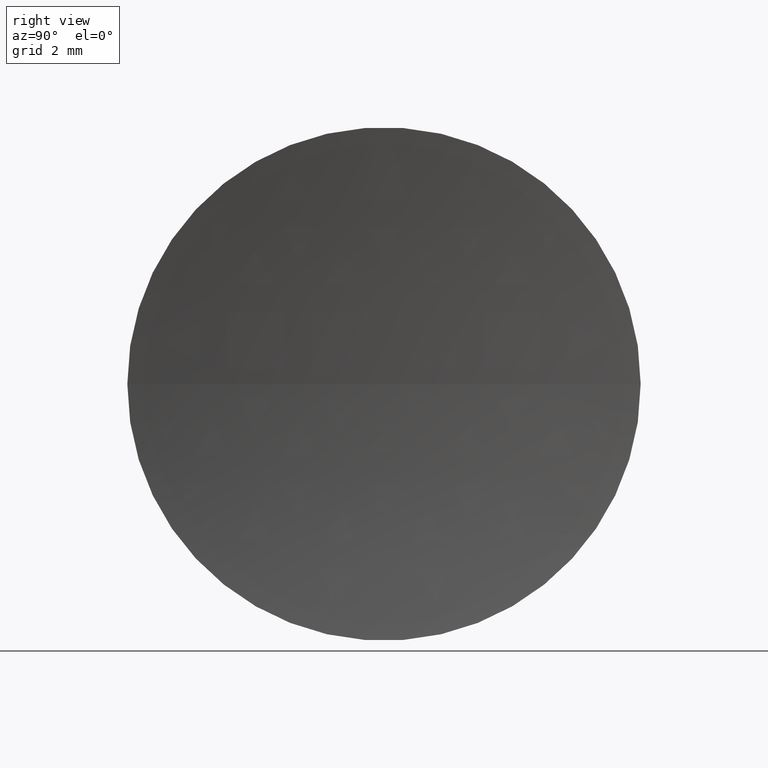
[diagram: clean part render]
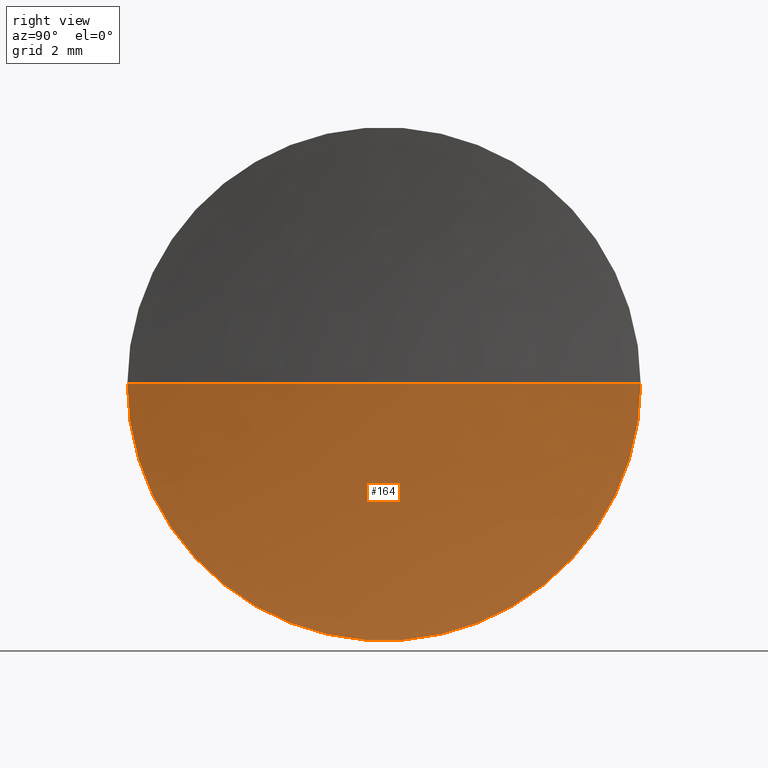
[diagram: same view with one face highlighted and labeled with its STEP entity id]
A machine part, right view. The second image highlights one B-rep face of the part: STEP entity #164.
In plain terms, the highlighted spherical surface has radius 32.5 mm.
Its self-contained STEP definition (entity closure, byte-faithful):
#7 = DIRECTION ( 'NONE',  ( 2.135044278125300100E-016, 1.000000000000000000, 0.0000000000000000000 ) ) ;
#8 = EDGE_CURVE ( 'NONE', #35, #101, #81, .T. ) ;
#10 = EDGE_CURVE ( 'NONE', #36, #101, #20, .T. ) ;
#20 = CIRCLE ( 'NONE', #32, 32.50000000000001400 ) ;
#26 = DIRECTION ( 'NONE',  ( 0.0000000000000000000, -1.000000000000000000, 0.0000000000000000000 ) ) ;
#32 = AXIS2_PLACEMENT_3D ( 'NONE', #44, #71, #157 ) ;
#33 = ORIENTED_EDGE ( 'NONE', *, *, #8, .T. ) ;
#35 = VERTEX_POINT ( 'NONE', #43 ) ;
#36 = VERTEX_POINT ( 'NONE', #143 ) ;
#39 = EDGE_CURVE ( 'NONE', #35, #36, #117, .T. ) ;
#43 = CARTESIAN_POINT ( 'NONE',  ( 24.31115060695783800, 18.03112609140307800, 0.0000000000000000000 ) ) ;
#44 = CARTESIAN_POINT ( 'NONE',  ( 56.42423205362066300, 13.03112609140303100, 0.0000000000000000000 ) ) ;
#54 = CARTESIAN_POINT ( 'NONE',  ( 56.42423205362066300, 13.03112609140303100, 0.0000000000000000000 ) ) ;
#61 = DIRECTION ( 'NONE',  ( 1.000000000000000000, 0.0000000000000000000, 0.0000000000000000000 ) ) ;
#62 = ORIENTED_EDGE ( 'NONE', *, *, #39, .F. ) ;
#63 = AXIS2_PLACEMENT_3D ( 'NONE', #142, #145, #61 ) ;
#66 = AXIS2_PLACEMENT_3D ( 'NONE', #107, #122, #26 ) ;
#71 = DIRECTION ( 'NONE',  ( 3.868869157118576300E-032, 1.224646799147353200E-016, -1.000000000000000000 ) ) ;
#81 = CIRCLE ( 'NONE', #63, 32.50000000000000700 ) ;
#84 = SPHERICAL_SURFACE ( 'NONE', #166, 32.50000000000000700 ) ;
#95 = DIRECTION ( 'NONE',  ( 0.0000000000000000000, 0.0000000000000000000, -1.000000000000000000 ) ) ;
#101 = VERTEX_POINT ( 'NONE', #124 ) ;
#107 = CARTESIAN_POINT ( 'NONE',  ( 24.31115060695783500, 13.03112609140304000, 0.0000000000000000000 ) ) ;
#117 = CIRCLE ( 'NONE', #66, 5.000000000000002700 ) ;
#122 = DIRECTION ( 'NONE',  ( -1.000000000000000000, 3.159171411554934600E-016, -0.0000000000000000000 ) ) ;
#124 = CARTESIAN_POINT ( 'NONE',  ( 23.92423205362065300, 13.03112609140304400, 0.0000000000000000000 ) ) ;
#126 = EDGE_LOOP ( 'NONE', ( #132, #62, #33 ) ) ;
#132 = ORIENTED_EDGE ( 'NONE', *, *, #10, .F. ) ;
#142 = CARTESIAN_POINT ( 'NONE',  ( 56.42423205362066300, 13.03112609140303100, 0.0000000000000000000 ) ) ;
#143 = CARTESIAN_POINT ( 'NONE',  ( 24.31115060695783800, 8.031126091403004700, -6.123233995736810700E-016 ) ) ;
#145 = DIRECTION ( 'NONE',  ( 0.0000000000000000000, 0.0000000000000000000, 1.000000000000000000 ) ) ;
#156 = FACE_OUTER_BOUND ( 'NONE', #126, .T. ) ;
#157 = DIRECTION ( 'NONE',  ( 0.0000000000000000000, 1.000000000000000000, 1.224646799147353200E-016 ) ) ;
#164 = ADVANCED_FACE ( 'NONE', ( #156 ), #84, .F. ) ;
#166 = AXIS2_PLACEMENT_3D ( 'NONE', #54, #95, #7 ) ;